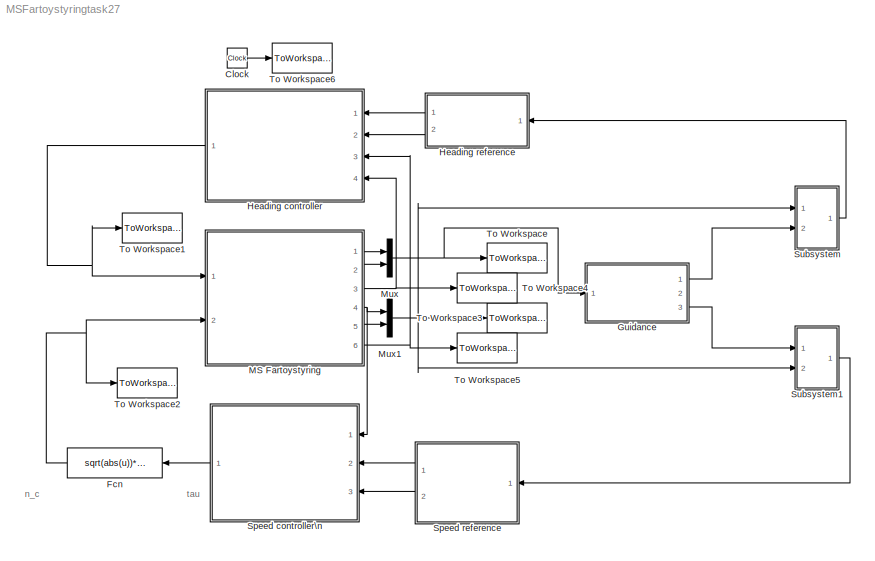
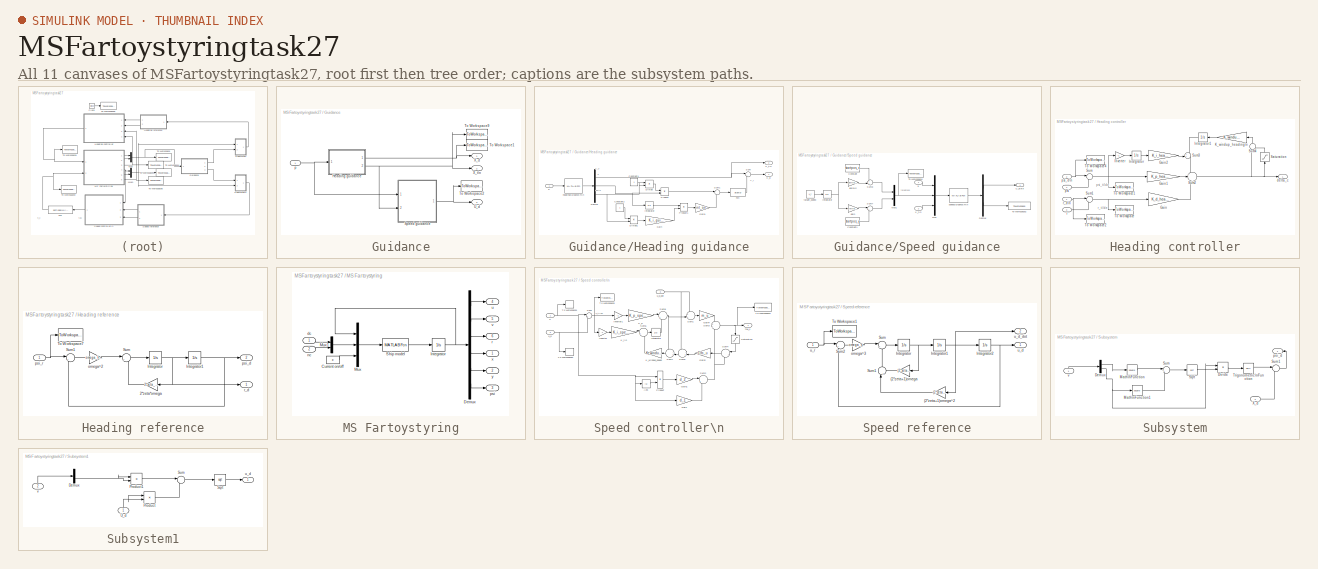
[diagram: thumbnail index - all 11 canvases of the model, root first then tree order]
MODEL MSFartoystyringtask27
KIND model
BLOCK [Clock] Clock
  SID = 30
BLOCK [Fcn] Fcn
  Expr = sqrt(abs(u))*sgn(u)
  SID = 95
BLOCK [SubSystem] Guidance
  Ports = [1, 3]
  RequestExecContextInheritance = off
  SID = 275
BLOCK [SubSystem] Guidance/Heading guidance
  Ports = [1, 2]
  RequestExecContextInheritance = off
  SID = 300
BLOCK [Constant] Guidance/Heading guidance/Constant1
  SID = 278
BLOCK [Constant] Guidance/Heading guidance/Constant2
  SID = 279
BLOCK [Demux] Guidance/Heading guidance/Demux
  DisplayOption = bar
  Outputs = 3
  Ports = [1, 3]
  SID = 280
BLOCK [Product] Guidance/Heading guidance/Divide
  InputSameDT = off
  Inputs = */
  OutDataTypeStr = Inherit: Inherit via internal rule
  Ports = [2, 1]
  RndMeth = Floor
  SID = 281
  SaturateOnIntegerOverflow = off
BLOCK [Product] Guidance/Heading guidance/Divide1
  InputSameDT = off
  Inputs = */
  OutDataTypeStr = Inherit: Inherit via internal rule
  Ports = [2, 1]
  RndMeth = Floor
  SID = 282
  SaturateOnIntegerOverflow = off
BLOCK [Fcn] Guidance/Heading guidance/Fcn
  Expr = atan(u)
  SID = 283
BLOCK [Gain] Guidance/Heading guidance/Gain
  Gain = K_i_guidance
  OutDataTypeStr = Inherit: Inherit via internal rule
  ParamDataTypeStr = Inherit: Inherit via internal rule
  SID = 284
  SaturateOnIntegerOverflow = off
BLOCK [Gain] Guidance/Heading guidance/Gain1
  Gain = int_on
  OutDataTypeStr = Inherit: Inherit via internal rule
  ParamDataTypeStr = Inherit: Inherit via internal rule
  SID = 285
  SaturateOnIntegerOverflow = off
BLOCK [Integrator] Guidance/Heading guidance/Integrator
  Ports = [1, 1]
  SID = 286
BLOCK [Product] Guidance/Heading guidance/Product
  InputSameDT = off
  OutDataTypeStr = Inherit: Inherit via internal rule
  Ports = [2, 1]
  RndMeth = Floor
  SID = 287
  SaturateOnIntegerOverflow = off
BLOCK [Product] Guidance/Heading guidance/Product1
  InputSameDT = off
  OutDataTypeStr = Inherit: Inherit via internal rule
  Ports = [2, 1]
  RndMeth = Floor
  SID = 288
  SaturateOnIntegerOverflow = off
BLOCK [Sum] Guidance/Heading guidance/Sum
  IconShape = round
  InputSameDT = off
  Inputs = |++
  OutDataTypeStr = Inherit: Inherit via internal rule
  Ports = [2, 1]
  SID = 289
  SaturateOnIntegerOverflow = off
BLOCK [Sum] Guidance/Heading guidance/Sum1
  IconShape = round
  InputSameDT = off
  Inputs = |--
  OutDataTypeStr = Inherit: Inherit via internal rule
  Ports = [2, 1]
  SID = 290
  SaturateOnIntegerOverflow = off
BLOCK [Outport] Guidance/Heading guidance/X_d
  IconDisplay = Port number
  SID = 302
BLOCK [Outport] Guidance/Heading guidance/X_t\n
  IconDisplay = Port number
  Port = 2
  SID = 303
BLOCK [MATLABFcn] Guidance/Heading guidance/headingGuidance.m\n
  MATLABFcn = headingGuidance(u)
  OutputDimensions = 3
  Ports = [1, 1]
  SID = 291
BLOCK [Inport] Guidance/Heading guidance/p
  IconDisplay = Port number
  SID = 301
BLOCK [SubSystem] Guidance/Speed guidance
  Ports = [2, 1]
  RequestExecContextInheritance = off
  SID = 306
BLOCK [Constant] Guidance/Speed guidance/Constant
  SID = 346
  Value = startpos_x
BLOCK [Constant] Guidance/Speed guidance/Constant1
  SID = 347
  Value = startpos_y
BLOCK [Demux] Guidance/Speed guidance/Demux
  DisplayOption = bar
  Outputs = 2
  Ports = [1, 2]
  SID = 335
BLOCK [Integrator] Guidance/Speed guidance/Integrator
  Ports = [1, 1]
  SID = 340
BLOCK [Mux] Guidance/Speed guidance/Mux
  DisplayOption = bar
  Inputs = 3
  Ports = [3, 1]
  SID = 334
BLOCK [Mux] Guidance/Speed guidance/Mux1
  DisplayOption = bar
  Inputs = 2
  Ports = [2, 1]
  SID = 348
BLOCK [Sum] Guidance/Speed guidance/Sum7
  IconShape = round
  InputSameDT = off
  Inputs = |++
  OutDataTypeStr = Inherit: Inherit via internal rule
  Ports = [2, 1]
  SID = 344
  SaturateOnIntegerOverflow = off
BLOCK [Sum] Guidance/Speed guidance/Sum8
  IconShape = round
  InputSameDT = off
  Inputs = ++|
  OutDataTypeStr = Inherit: Inherit via internal rule
  Ports = [2, 1]
  SID = 343
  SaturateOnIntegerOverflow = off
BLOCK [ToWorkspace] Guidance/Speed guidance/To Workspace2
  MaxDataPoints = inf
  Ports = [1]
  SID = 337
  SampleTime = tsamp
  VariableName = distance_error
BLOCK [ToWorkspace] Guidance/Speed guidance/To Workspace4
  MaxDataPoints = inf
  Ports = [1]
  SID = 350
  SampleTime = tsamp
  VariableName = targetpos
BLOCK [Outport] Guidance/Speed guidance/U_d\n\n
  IconDisplay = Port number
  SID = 323
BLOCK [Inport] Guidance/Speed guidance/X_t\n
  IconDisplay = Port number
  Port = 2
  SID = 328
BLOCK [Gain] Guidance/Speed guidance/gain
  Gain = sin(tracking_angle)
  OutDataTypeStr = Inherit: Inherit via internal rule
  ParamDataTypeStr = Inherit: Inherit via internal rule
  SID = 342
  SaturateOnIntegerOverflow = off
BLOCK [Gain] Guidance/Speed guidance/gain1\n
  Gain = cos(tracking_angle)
  OutDataTypeStr = Inherit: Inherit via internal rule
  ParamDataTypeStr = Inherit: Inherit via internal rule
  SID = 341
  SaturateOnIntegerOverflow = off
BLOCK [Inport] Guidance/Speed guidance/p
  IconDisplay = Port number
  SID = 307
BLOCK [MATLABFcn] Guidance/Speed guidance/speedGuidance.m\n
  MATLABFcn = speedGuidance(u(1:2),u(3:4),u(5))
  OutputDimensions = 2
  Ports = [1, 1]
  SID = 332
BLOCK [Constant] Guidance/Speed guidance/target_speed
  SID = 339
  Value = U_t
BLOCK [ToWorkspace] Guidance/To Workspace1
  MaxDataPoints = inf
  Ports = [1]
  SID = 305
  SampleTime = tsamp
  VariableName = X_d
BLOCK [ToWorkspace] Guidance/To Workspace2
  MaxDataPoints = inf
  Ports = [1]
  SID = 331
  SampleTime = tsamp
  VariableName = U_d
BLOCK [ToWorkspace] Guidance/To Workspace9
  MaxDataPoints = inf
  Ports = [1]
  SID = 304
  SampleTime = tsamp
  VariableName = X_t
BLOCK [Outport] Guidance/U_d
  IconDisplay = Port number
  Port = 3
  SID = 293
BLOCK [Outport] Guidance/X_d
  IconDisplay = Port number
  SID = 292
BLOCK [Outport] Guidance/X_t\n
  IconDisplay = Port number
  Port = 2
  SID = 299
BLOCK [Inport] Guidance/p
  IconDisplay = Port number
  SID = 276
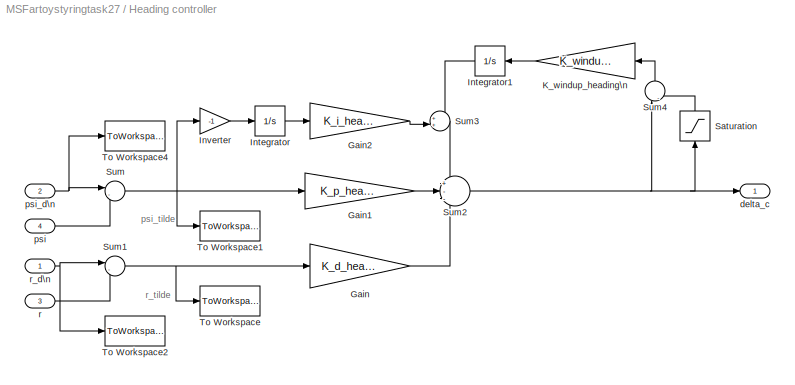
BLOCK [SubSystem] Heading controller
  Ports = [4, 1]
  RequestExecContextInheritance = off
  SID = 31
BLOCK [Gain] Heading controller/Gain
  Gain = K_d_heading
  OutDataTypeStr = Inherit: Inherit via internal rule
  ParamDataTypeStr = Inherit: Inherit via internal rule
  SID = 36
  SaturateOnIntegerOverflow = off
BLOCK [Gain] Heading controller/Gain1
  Gain = K_p_heading
  OutDataTypeStr = Inherit: Inherit via internal rule
  ParamDataTypeStr = Inherit: Inherit via internal rule
  SID = 37
  SaturateOnIntegerOverflow = off
BLOCK [Gain] Heading controller/Gain2
  Gain = K_i_heading
  OutDataTypeStr = Inherit: Inherit via internal rule
  ParamDataTypeStr = Inherit: Inherit via internal rule
  SID = 38
  SaturateOnIntegerOverflow = off
BLOCK [Integrator] Heading controller/Integrator
  Ports = [1, 1]
  SID = 39
BLOCK [Integrator] Heading controller/Integrator1
  Ports = [1, 1]
  SID = 185
BLOCK [Gain] Heading controller/Inverter
  Gain = -1
  OutDataTypeStr = Inherit: Inherit via internal rule
  ParamDataTypeStr = Inherit: Inherit via internal rule
  SID = 189
  SaturateOnIntegerOverflow = off
BLOCK [Gain] Heading controller/K_windup_heading\n
  Gain = K_windup_heading
  OutDataTypeStr = Inherit: Inherit via internal rule
  ParamDataTypeStr = Inherit: Inherit via internal rule
  SID = 184
  SaturateOnIntegerOverflow = off
BLOCK [Saturate] Heading controller/Saturation
  InputPortMap = u0
  LowerLimit = -delta_c_max
  Ports = [1, 1]
  SID = 187
  UpperLimit = delta_c_max
BLOCK [Sum] Heading controller/Sum
  IconShape = round
  InputSameDT = off
  Inputs = |-+
  OutDataTypeStr = Inherit: Inherit via internal rule
  Ports = [2, 1]
  SID = 40
  SaturateOnIntegerOverflow = off
BLOCK [Sum] Heading controller/Sum1
  IconShape = round
  InputSameDT = off
  Inputs = |-+
  OutDataTypeStr = Inherit: Inherit via internal rule
  Ports = [2, 1]
  SID = 41
  SaturateOnIntegerOverflow = off
BLOCK [Sum] Heading controller/Sum2
  IconShape = round
  InputSameDT = off
  Inputs = +--
  OutDataTypeStr = Inherit: Inherit via internal rule
  Ports = [3, 1]
  SID = 42
  SaturateOnIntegerOverflow = off
BLOCK [Sum] Heading controller/Sum3
  IconShape = round
  InputSameDT = off
  Inputs = ++|
  OutDataTypeStr = Inherit: Inherit via internal rule
  Ports = [2, 1]
  SID = 186
  SaturateOnIntegerOverflow = off
BLOCK [Sum] Heading controller/Sum4
  IconShape = round
  InputSameDT = off
  Inputs = |-+
  OutDataTypeStr = Inherit: Inherit via internal rule
  Ports = [2, 1]
  SID = 188
  SaturateOnIntegerOverflow = off
BLOCK [ToWorkspace] Heading controller/To Workspace
  FixptAsFi = on
  MaxDataPoints = inf
  Ports = [1]
  SID = 43
  SampleTime = tsamp
  VariableName = r_tilde
BLOCK [ToWorkspace] Heading controller/To Workspace1
  FixptAsFi = on
  MaxDataPoints = inf
  Ports = [1]
  SID = 44
  SampleTime = tsamp
  VariableName = psi_tilde
BLOCK [ToWorkspace] Heading controller/To Workspace2
  FixptAsFi = on
  MaxDataPoints = inf
  Ports = [1]
  SID = 45
  SampleTime = tsamp
  VariableName = r_d
BLOCK [ToWorkspace] Heading controller/To Workspace4
  FixptAsFi = on
  MaxDataPoints = inf
  Ports = [1]
  SID = 46
  SampleTime = tsamp
  VariableName = psi_d
BLOCK [Outport] Heading controller/delta_c
  IconDisplay = Port number
  SID = 47
BLOCK [Inport] Heading controller/psi
  IconDisplay = Port number
  Port = 4
  SID = 35
BLOCK [Inport] Heading controller/psi_d\n
  IconDisplay = Port number
  Port = 2
  SID = 33
BLOCK [Inport] Heading controller/r
  IconDisplay = Port number
  Port = 3
  SID = 34
BLOCK [Inport] Heading controller/r_d\n
  IconDisplay = Port number
  SID = 32
BLOCK [SubSystem] Heading reference
  Ports = [1, 2]
  RequestExecContextInheritance = off
  SID = 145
BLOCK [Gain] Heading reference/2*zeta*omega
  Gain = 2*zeta_heading*omega_heading
  OutDataTypeStr = Inherit: Inherit via internal rule
  ParamDataTypeStr = Inherit: Inherit via internal rule
  SID = 164
  SaturateOnIntegerOverflow = off
BLOCK [Integrator] Heading reference/Integrator
  InitialCondition = r0
  Ports = [1, 1]
  SID = 165
BLOCK [Integrator] Heading reference/Integrator1
  InitialCondition = psi0
  Ports = [1, 1]
  SID = 166
BLOCK [Sum] Heading reference/Sum
  IconShape = round
  InputSameDT = off
  Inputs = |+-
  OutDataTypeStr = Inherit: Inherit via internal rule
  Ports = [2, 1]
  SID = 167
  SaturateOnIntegerOverflow = off
BLOCK [Sum] Heading reference/Sum1
  IconShape = round
  InputSameDT = off
  Inputs = |+-
  OutDataTypeStr = Inherit: Inherit via internal rule
  Ports = [2, 1]
  SID = 168
  SaturateOnIntegerOverflow = off
BLOCK [ToWorkspace] Heading reference/To Workspace7
  MaxDataPoints = inf
  Ports = [1]
  SID = 169
  SampleTime = tsamp
  VariableName = psi_r
BLOCK [Gain] Heading reference/omega^2
  Gain = omega_heading^2
  OutDataTypeStr = Inherit: Inherit via internal rule
  ParamDataTypeStr = Inherit: Inherit via internal rule
  SID = 170
  SaturateOnIntegerOverflow = off
BLOCK [Outport] Heading reference/psi_d
  IconDisplay = Port number
  Port = 2
  SID = 158
BLOCK [Inport] Heading reference/psi_r
  IconDisplay = Port number
  SID = 146
BLOCK [Outport] Heading reference/r_d
  IconDisplay = Port number
  SID = 157
BLOCK [SubSystem] MS Fartoystyring
  Ports = [2, 6]
  RequestExecContextInheritance = off
  SID = 50
BLOCK [Constant] MS Fartoystyring/Current on//off
  SID = 53
  Value = c
BLOCK [Demux] MS Fartoystyring/Demux
  DisplayOption = bar
  Outputs = 6
  Ports = [1, 6]
  SID = 54
BLOCK [Integrator] MS Fartoystyring/Integrator
  InitialCondition = [u0 v0 r0 x0 y0 psi0]'
  Ports = [1, 1]
  SID = 55
BLOCK [Mux] MS Fartoystyring/Mux
  DisplayOption = bar
  Inputs = 3
  Ports = [3, 1]
  SID = 56
BLOCK [Mux] MS Fartoystyring/Mux1
  DisplayOption = bar
  Inputs = 2
  Ports = [2, 1]
  SID = 57
BLOCK [MATLABFcn] MS Fartoystyring/Ship model
  MATLABFcn = msfartoystyring(u(1:6), u(7:8), u(9))
  OutputDimensions = 6
  Ports = [1, 1]
  SID = 58
BLOCK [Inport] MS Fartoystyring/dc
  IconDisplay = Port number
  SID = 51
BLOCK [Inport] MS Fartoystyring/nc
  IconDisplay = Port number
  Port = 2
  SID = 52
BLOCK [Outport] MS Fartoystyring/psi
  IconDisplay = Port number
  Port = 3
  SID = 61
BLOCK [Outport] MS Fartoystyring/r
  IconDisplay = Port number
  Port = 6
  SID = 64
BLOCK [Outport] MS Fartoystyring/u
  IconDisplay = Port number
  Port = 4
  SID = 62
BLOCK [Outport] MS Fartoystyring/v
  IconDisplay = Port number
  Port = 5
  SID = 63
BLOCK [Outport] MS Fartoystyring/x
  IconDisplay = Port number
  SID = 59
BLOCK [Outport] MS Fartoystyring/y
  IconDisplay = Port number
  Port = 2
  SID = 60
BLOCK [Mux] Mux
  DisplayOption = bar
  Inputs = 2
  Ports = [2, 1]
  SID = 65
BLOCK [Mux] Mux1
  DisplayOption = bar
  Inputs = 2
  Ports = [2, 1]
  SID = 66
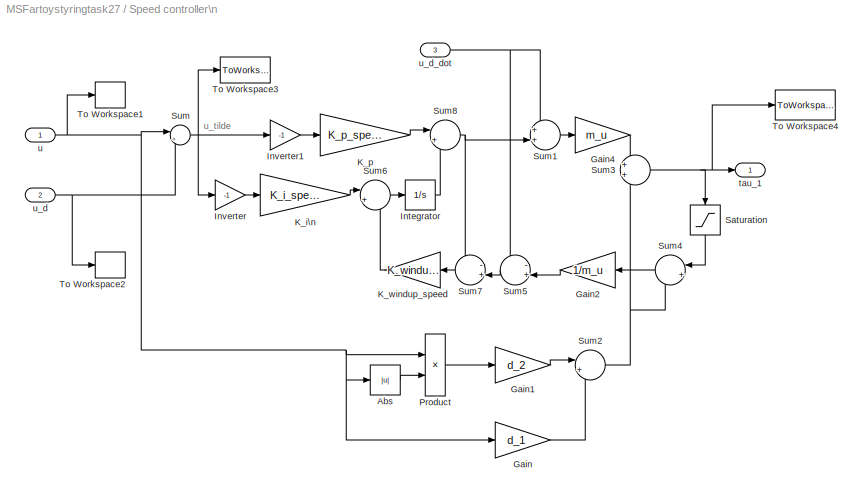
BLOCK [SubSystem] Speed controller\n
  Ports = [3, 1]
  RequestExecContextInheritance = off
  SID = 243
BLOCK [Abs] Speed controller\n/Abs
  SID = 247
  SaturateOnIntegerOverflow = off
BLOCK [Gain] Speed controller\n/Gain
  Gain = d_1
  OutDataTypeStr = Inherit: Inherit via internal rule
  ParamDataTypeStr = Inherit: Inherit via internal rule
  SID = 248
  SaturateOnIntegerOverflow = off
BLOCK [Gain] Speed controller\n/Gain1
  Gain = d_2
  OutDataTypeStr = Inherit: Inherit via internal rule
  ParamDataTypeStr = Inherit: Inherit via internal rule
  SID = 249
  SaturateOnIntegerOverflow = off
BLOCK [Gain] Speed controller\n/Gain2
  Gain = 1/m_u
  OutDataTypeStr = Inherit: Inherit via internal rule
  ParamDataTypeStr = Inherit: Inherit via internal rule
  SID = 250
  SaturateOnIntegerOverflow = off
BLOCK [Gain] Speed controller\n/Gain4
  Gain = m_u
  OutDataTypeStr = Inherit: Inherit via internal rule
  ParamDataTypeStr = Inherit: Inherit via internal rule
  SID = 251
  SaturateOnIntegerOverflow = off
BLOCK [Integrator] Speed controller\n/Integrator
  Ports = [1, 1]
  SID = 252
BLOCK [Gain] Speed controller\n/Inverter
  Gain = -1
  OutDataTypeStr = Inherit: Inherit via internal rule
  ParamDataTypeStr = Inherit: Inherit via internal rule
  SID = 253
  SaturateOnIntegerOverflow = off
BLOCK [Gain] Speed controller\n/Inverter1
  Gain = -1
  OutDataTypeStr = Inherit: Inherit via internal rule
  ParamDataTypeStr = Inherit: Inherit via internal rule
  SID = 254
  SaturateOnIntegerOverflow = off
BLOCK [Gain] Speed controller\n/K_i\n
  Gain = K_i_speed
  OutDataTypeStr = Inherit: Inherit via internal rule
  ParamDataTypeStr = Inherit: Inherit via internal rule
  SID = 255
  SaturateOnIntegerOverflow = off
BLOCK [Gain] Speed controller\n/K_p
  Gain = K_p_speed
  OutDataTypeStr = Inherit: Inherit via internal rule
  ParamDataTypeStr = Inherit: Inherit via internal rule
  SID = 256
  SaturateOnIntegerOverflow = off
BLOCK [Gain] Speed controller\n/K_windup_speed
  Gain = K_windup_speed
  OutDataTypeStr = Inherit: Inherit via internal rule
  ParamDataTypeStr = Inherit: Inherit via internal rule
  SID = 257
  SaturateOnIntegerOverflow = off
BLOCK [Product] Speed controller\n/Product
  InputSameDT = off
  OutDataTypeStr = Inherit: Inherit via internal rule
  Ports = [2, 1]
  RndMeth = Floor
  SID = 258
  SaturateOnIntegerOverflow = off
BLOCK [Saturate] Speed controller\n/Saturation
  InputPortMap = u0
  LowerLimit = -n_c_max^2
  Ports = [1, 1]
  SID = 259
  UpperLimit = n_c_max^2
BLOCK [Sum] Speed controller\n/Sum
  IconShape = round
  InputSameDT = off
  Inputs = |+-
  OutDataTypeStr = Inherit: Inherit via internal rule
  Ports = [2, 1]
  SID = 260
  SaturateOnIntegerOverflow = off
BLOCK [Sum] Speed controller\n/Sum1
  IconShape = round
  InputSameDT = off
  Inputs = ++|
  OutDataTypeStr = Inherit: Inherit via internal rule
  Ports = [2, 1]
  SID = 261
  SaturateOnIntegerOverflow = off
BLOCK [Sum] Speed controller\n/Sum2
  IconShape = round
  InputSameDT = off
  Inputs = |++
  OutDataTypeStr = Inherit: Inherit via internal rule
  Ports = [2, 1]
  SID = 262
  SaturateOnIntegerOverflow = off
BLOCK [Sum] Speed controller\n/Sum3
  IconShape = round
  InputSameDT = off
  OutDataTypeStr = Inherit: Inherit via internal rule
  Ports = [2, 1]
  SID = 263
  SaturateOnIntegerOverflow = off
BLOCK [Sum] Speed controller\n/Sum4
  IconShape = round
  InputSameDT = off
  Inputs = |+-
  OutDataTypeStr = Inherit: Inherit via internal rule
  Ports = [2, 1]
  SID = 264
  SaturateOnIntegerOverflow = off
BLOCK [Sum] Speed controller\n/Sum5
  IconShape = round
  InputSameDT = off
  Inputs = -+|
  OutDataTypeStr = Inherit: Inherit via internal rule
  Ports = [2, 1]
  SID = 265
  SaturateOnIntegerOverflow = off
BLOCK [Sum] Speed controller\n/Sum6
  IconShape = round
  InputSameDT = off
  Inputs = |++
  OutDataTypeStr = Inherit: Inherit via internal rule
  Ports = [2, 1]
  SID = 266
  SaturateOnIntegerOverflow = off
BLOCK [Sum] Speed controller\n/Sum7
  IconShape = round
  InputSameDT = off
  Inputs = -+|
  OutDataTypeStr = Inherit: Inherit via internal rule
  Ports = [2, 1]
  SID = 267
  SaturateOnIntegerOverflow = off
BLOCK [Sum] Speed controller\n/Sum8
  IconShape = round
  InputSameDT = off
  Inputs = |++
  OutDataTypeStr = Inherit: Inherit via internal rule
  Ports = [2, 1]
  SID = 268
  SaturateOnIntegerOverflow = off
BLOCK [ToWorkspace] Speed controller\n/To Workspace1
  MaxDataPoints = inf
  Ports = [1]
  SID = 269
  SampleTime = tsamp
  VariableName = u
BLOCK [ToWorkspace] Speed controller\n/To Workspace2
  MaxDataPoints = inf
  Ports = [1]
  SID = 270
  SampleTime = tsamp
  VariableName = u_d
BLOCK [ToWorkspace] Speed controller\n/To Workspace3
  MaxDataPoints = inf
  Ports = [1]
  SID = 271
  SampleTime = tsamp
  VariableName = u_tilde
BLOCK [ToWorkspace] Speed controller\n/To Workspace4
  FixptAsFi = on
  MaxDataPoints = inf
  Ports = [1]
  SID = 272
  SampleTime = tsamp
  Save2DSignal = 3-D array (concatenate along third dimension)
  VariableName = tau
BLOCK [Outport] Speed controller\n/tau_1
  IconDisplay = Port number
  SID = 273
BLOCK [Inport] Speed controller\n/u
  IconDisplay = Port number
  SID = 244
BLOCK [Inport] Speed controller\n/u_d
  IconDisplay = Port number
  Port = 2
  SID = 245
BLOCK [Inport] Speed controller\n/u_d_dot
  IconDisplay = Port number
  Port = 3
  SID = 246
BLOCK [SubSystem] Speed reference
  Ports = [1, 2]
  RequestExecContextInheritance = off
  SID = 99
BLOCK [Gain] Speed reference/(2*zeta+1)omega
  Gain = (2*zeta_speed+1)*omega_speed
  OutDataTypeStr = Inherit: Inherit via internal rule
  ParamDataTypeStr = Inherit: Inherit via internal rule
  SID = 133
  SaturateOnIntegerOverflow = off
BLOCK [Gain] Speed reference/(2*zeta+1)omega^2
  Gain = (2*zeta_speed+1)*omega_speed^2
  OutDataTypeStr = Inherit: Inherit via internal rule
  ParamDataTypeStr = Inherit: Inherit via internal rule
  SID = 134
  SaturateOnIntegerOverflow = off
BLOCK [Integrator] Speed reference/Integrator
  Ports = [1, 1]
  SID = 135
BLOCK [Integrator] Speed reference/Integrator1
  Ports = [1, 1]
  SID = 136
BLOCK [Integrator] Speed reference/Integrator2
  InitialCondition = u_r_0
  Ports = [1, 1]
  SID = 137
BLOCK [Sum] Speed reference/Sum
  IconShape = round
  InputSameDT = off
  Inputs = |+-
  OutDataTypeStr = Inherit: Inherit via internal rule
  Ports = [2, 1]
  SID = 138
  SaturateOnIntegerOverflow = off
BLOCK [Sum] Speed reference/Sum1
  IconShape = round
  InputSameDT = off
  Inputs = |++
  OutDataTypeStr = Inherit: Inherit via internal rule
  Ports = [2, 1]
  SID = 139
  SaturateOnIntegerOverflow = off
BLOCK [Sum] Speed reference/Sum2
  IconShape = round
  InputSameDT = off
  Inputs = |+-
  OutDataTypeStr = Inherit: Inherit via internal rule
  Ports = [2, 1]
  SID = 140
  SaturateOnIntegerOverflow = off
BLOCK [ToWorkspace] Speed reference/To Workspace1
  MaxDataPoints = inf
  Ports = [1]
  SID = 141
  SampleTime = tsamp
  VariableName = u_r
BLOCK [Gain] Speed reference/omega^3
  Gain = omega_speed^3
  OutDataTypeStr = Inherit: Inherit via internal rule
  ParamDataTypeStr = Inherit: Inherit via internal rule
  SID = 142
  SaturateOnIntegerOverflow = off
BLOCK [Outport] Speed reference/u_d
  IconDisplay = Port number
  SID = 143
BLOCK [Outport] Speed reference/u_d_dot
  IconDisplay = Port number
  Port = 2
  SID = 144
BLOCK [Inport] Speed reference/u_r
  IconDisplay = Port number
  SID = 132
BLOCK [SubSystem] Subsystem
  Ports = [2, 1]
  RequestExecContextInheritance = off
  SID = 210
BLOCK [Demux] Subsystem/Demux
  DisplayOption = bar
  Outputs = 2
  Ports = [1, 2]
  SID = 204
BLOCK [Product] Subsystem/Divide
  InputSameDT = off
  Inputs = */
  OutDataTypeStr = Inherit: Inherit via internal rule
  Ports = [2, 1]
  RndMeth = Floor
  SID = 207
  SaturateOnIntegerOverflow = off
BLOCK [Math] Subsystem/Math\nFunction
  Operator = square
  Ports = [1, 1]
  SID = 201
BLOCK [Math] Subsystem/Math\nFunction1
  Operator = square
  Ports = [1, 1]
  SID = 202
BLOCK [Sqrt] Subsystem/Sqrt
  SID = 206
BLOCK [Sum] Subsystem/Sum
  IconShape = round
  InputSameDT = off
  Inputs = |++
  OutDataTypeStr = Inherit: Inherit via internal rule
  Ports = [2, 1]
  SID = 203
  SaturateOnIntegerOverflow = off
BLOCK [Sum] Subsystem/Sum1
  IconShape = round
  InputSameDT = off
  Inputs = |-+
  OutDataTypeStr = Inherit: Inherit via internal rule
  Ports = [2, 1]
  SID = 209
  SaturateOnIntegerOverflow = off
BLOCK [Trigonometry] Subsystem/Trigonometric\nFunction
  Operator = asin
  Ports = [1, 1]
  SID = 208
BLOCK [Inport] Subsystem/X_d
  IconDisplay = Port number
  Port = 2
  SID = 212
BLOCK [Outport] Subsystem/psi_d
  IconDisplay = Port number
  SID = 213
BLOCK [Inport] Subsystem/v
  IconDisplay = Port number
  SID = 211
BLOCK [SubSystem] Subsystem1
  Ports = [2, 1]
  RequestExecContextInheritance = off
  SID = 216
BLOCK [Demux] Subsystem1/Demux
  DisplayOption = bar
  Outputs = 2
  Ports = [1, 2]
  SID = 231
BLOCK [Product] Subsystem1/Product
  InputSameDT = off
  OutDataTypeStr = Inherit: Inherit via internal rule
  Ports = [2, 1]
  RndMeth = Floor
  SID = 233
  SaturateOnIntegerOverflow = off
BLOCK [Product] Subsystem1/Product1
  InputSameDT = off
  OutDataTypeStr = Inherit: Inherit via internal rule
  Ports = [2, 1]
  RndMeth = Floor
  SID = 234
  SaturateOnIntegerOverflow = off
BLOCK [Sqrt] Subsystem1/Sqrt
  SID = 235
BLOCK [Sum] Subsystem1/Sum
  IconShape = round
  InputSameDT = off
  Inputs = |-+
  OutDataTypeStr = Inherit: Inherit via internal rule
  Ports = [2, 1]
  SID = 232
  SaturateOnIntegerOverflow = off
BLOCK [Inport] Subsystem1/U_d
  IconDisplay = Port number
  SID = 217
BLOCK [Outport] Subsystem1/u_d
  IconDisplay = Port number
  SID = 229
BLOCK [Inport] Subsystem1/v
  IconDisplay = Port number
  Port = 2
  SID = 230
BLOCK [ToWorkspace] To Workspace
  MaxDataPoints = inf
  Ports = [1]
  SID = 69
  SampleTime = tsamp
  VariableName = p
BLOCK [ToWorkspace] To Workspace1
  MaxDataPoints = inf
  Ports = [1]
  SID = 351
  SampleTime = tsamp
  VariableName = delta_c
BLOCK [ToWorkspace] To Workspace2
  MaxDataPoints = inf
  Ports = [1]
  SID = 352
  SampleTime = tsamp
  VariableName = n_c
BLOCK [ToWorkspace] To Workspace3
  MaxDataPoints = inf
  Ports = [1]
  SID = 70
  SampleTime = tsamp
  VariableName = v
BLOCK [ToWorkspace] To Workspace4
  MaxDataPoints = inf
  Ports = [1]
  SID = 71
  SampleTime = tsamp
  VariableName = psi
BLOCK [ToWorkspace] To Workspace5
  MaxDataPoints = inf
  Ports = [1]
  SID = 72
  SampleTime = tsamp
  VariableName = r
BLOCK [ToWorkspace] To Workspace6
  MaxDataPoints = inf
  Ports = [1]
  SID = 73
  SampleTime = tsamp
  VariableName = t
ANNOTATION (root): n_c
ANNOTATION (root): tau
ANNOTATION Guidance/Heading guidance: X_p\n
ANNOTATION Guidance/Heading guidance: X_r
ANNOTATION Guidance/Heading guidance: delta
ANNOTATION Guidance/Heading guidance: e
ANNOTATION Guidance/Speed guidance: targetpos
ANNOTATION Heading controller: psi_tilde\n
ANNOTATION Heading controller: r_tilde\n
ANNOTATION Speed controller\n: u_tilde
LINE Clock:1 -> To Workspace6:1
NET Fcn:1 -> MS Fartoystyring:2, To Workspace2:1
LINE Guidance/Heading guidance/Constant1:1 -> Guidance/Heading guidance/Divide:1
LINE Guidance/Heading guidance/Constant2:1 -> Guidance/Heading guidance/Divide1:1
NET Guidance/Heading guidance/Demux:1 -> Guidance/Heading guidance/Sum:1, Guidance/Heading guidance/X_t\n:1
NET Guidance/Heading guidance/Demux:2 -> Guidance/Heading guidance/Integrator:1, Guidance/Heading guidance/Product:2
NET Guidance/Heading guidance/Demux:3 -> Guidance/Heading guidance/Divide1:2, Guidance/Heading guidance/Divide:2
LINE Guidance/Heading guidance/Divide1:1 -> Guidance/Heading guidance/Gain:1
LINE Guidance/Heading guidance/Divide:1 -> Guidance/Heading guidance/Product:1
LINE Guidance/Heading guidance/Fcn:1 -> Guidance/Heading guidance/Sum:2
LINE Guidance/Heading guidance/Gain1:1 -> Guidance/Heading guidance/Sum1:2
LINE Guidance/Heading guidance/Gain:1 -> Guidance/Heading guidance/Product1:2
LINE Guidance/Heading guidance/Integrator:1 -> Guidance/Heading guidance/Product1:1
LINE Guidance/Heading guidance/Product1:1 -> Guidance/Heading guidance/Gain1:1
LINE Guidance/Heading guidance/Product:1 -> Guidance/Heading guidance/Sum1:1
LINE Guidance/Heading guidance/Sum1:1 -> Guidance/Heading guidance/Fcn:1
LINE Guidance/Heading guidance/Sum:1 -> Guidance/Heading guidance/X_d:1
LINE Guidance/Heading guidance/headingGuidance.m\n:1 -> Guidance/Heading guidance/Demux:1
LINE Guidance/Heading guidance/p:1 -> Guidance/Heading guidance/headingGuidance.m\n:1
NET Guidance/Heading guidance:1 -> Guidance/To Workspace1:1, Guidance/X_d:1
NET Guidance/Heading guidance:2 -> Guidance/Speed guidance:2, Guidance/To Workspace9:1, Guidance/X_t\n:1
LINE Guidance/Speed guidance/Constant1:1 -> Guidance/Speed guidance/Sum7:2
LINE Guidance/Speed guidance/Constant:1 -> Guidance/Speed guidance/Sum8:1
LINE Guidance/Speed guidance/Demux:1 -> Guidance/Speed guidance/U_d\n\n:1
LINE Guidance/Speed guidance/Demux:2 -> Guidance/Speed guidance/To Workspace2:1
NET Guidance/Speed guidance/Integrator:1 -> Guidance/Speed guidance/gain1\n:1, Guidance/Speed guidance/gain:1
NET Guidance/Speed guidance/Mux1:1 -> Guidance/Speed guidance/Mux:2, Guidance/Speed guidance/To Workspace4:1
LINE Guidance/Speed guidance/Mux:1 -> Guidance/Speed guidance/speedGuidance.m\n:1
LINE Guidance/Speed guidance/Sum7:1 -> Guidance/Speed guidance/Mux1:2
LINE Guidance/Speed guidance/Sum8:1 -> Guidance/Speed guidance/Mux1:1
LINE Guidance/Speed guidance/X_t\n:1 -> Guidance/Speed guidance/Mux:3
LINE Guidance/Speed guidance/gain1\n:1 -> Guidance/Speed guidance/Sum8:2
LINE Guidance/Speed guidance/gain:1 -> Guidance/Speed guidance/Sum7:1
LINE Guidance/Speed guidance/p:1 -> Guidance/Speed guidance/Mux:1
LINE Guidance/Speed guidance/speedGuidance.m\n:1 -> Guidance/Speed guidance/Demux:1
LINE Guidance/Speed guidance/target_speed:1 -> Guidance/Speed guidance/Integrator:1
NET Guidance/Speed guidance:1 -> Guidance/To Workspace2:1, Guidance/U_d:1
NET Guidance/p:1 -> Guidance/Heading guidance:1, Guidance/Speed guidance:1
LINE Guidance:1 -> Subsystem:2
LINE Guidance:3 -> Subsystem1:1
LINE Heading controller/Gain1:1 -> Heading controller/Sum2:2
LINE Heading controller/Gain2:1 -> Heading controller/Sum3:2
LINE Heading controller/Gain:1 -> Heading controller/Sum2:3
LINE Heading controller/Integrator1:1 -> Heading controller/Sum3:1
LINE Heading controller/Integrator:1 -> Heading controller/Gain2:1
LINE Heading controller/Inverter:1 -> Heading controller/Integrator:1
LINE Heading controller/K_windup_heading\n:1 -> Heading controller/Integrator1:1
LINE Heading controller/Saturation:1 -> Heading controller/Sum4:2
NET Heading controller/Sum1:1 -> Heading controller/Gain:1, Heading controller/To Workspace:1
NET Heading controller/Sum2:1 -> Heading controller/Saturation:1, Heading controller/Sum4:1, Heading controller/delta_c:1
LINE Heading controller/Sum3:1 -> Heading controller/Sum2:1
LINE Heading controller/Sum4:1 -> Heading controller/K_windup_heading\n:1
NET Heading controller/Sum:1 -> Heading controller/Gain1:1, Heading controller/Inverter:1, Heading controller/To Workspace1:1
LINE Heading controller/psi:1 -> Heading controller/Sum:2
NET Heading controller/psi_d\n:1 -> Heading controller/Sum:1, Heading controller/To Workspace4:1
LINE Heading controller/r:1 -> Heading controller/Sum1:2
NET Heading controller/r_d\n:1 -> Heading controller/Sum1:1, Heading controller/To Workspace2:1
NET Heading controller:1 -> MS Fartoystyring:1, To Workspace1:1
LINE Heading reference/2*zeta*omega:1 -> Heading reference/Sum:2
NET Heading reference/Integrator1:1 -> Heading reference/Sum1:2, Heading reference/psi_d:1
NET Heading reference/Integrator:1 -> Heading reference/2*zeta*omega:1, Heading reference/Integrator1:1, Heading reference/r_d:1
LINE Heading reference/Sum1:1 -> Heading reference/omega^2:1
LINE Heading reference/Sum:1 -> Heading reference/Integrator:1
LINE Heading reference/omega^2:1 -> Heading reference/Sum:1
NET Heading reference/psi_r:1 -> Heading reference/Sum1:1, Heading reference/To Workspace7:1
LINE Heading reference:1 -> Heading controller:1
LINE Heading reference:2 -> Heading controller:2
LINE MS Fartoystyring/Current on//off:1 -> MS Fartoystyring/Mux:3
LINE MS Fartoystyring/Demux:1 -> MS Fartoystyring/u:1
LINE MS Fartoystyring/Demux:2 -> MS Fartoystyring/v:1
LINE MS Fartoystyring/Demux:3 -> MS Fartoystyring/r:1
LINE MS Fartoystyring/Demux:4 -> MS Fartoystyring/x:1
LINE MS Fartoystyring/Demux:5 -> MS Fartoystyring/y:1
LINE MS Fartoystyring/Demux:6 -> MS Fartoystyring/psi:1
NET MS Fartoystyring/Integrator:1 -> MS Fartoystyring/Demux:1, MS Fartoystyring/Mux:1
LINE MS Fartoystyring/Mux1:1 -> MS Fartoystyring/Mux:2
LINE MS Fartoystyring/Mux:1 -> MS Fartoystyring/Ship model:1
LINE MS Fartoystyring/Ship model:1 -> MS Fartoystyring/Integrator:1
LINE MS Fartoystyring/dc:1 -> MS Fartoystyring/Mux1:1
LINE MS Fartoystyring/nc:1 -> MS Fartoystyring/Mux1:2
LINE MS Fartoystyring:1 -> Mux:1
LINE MS Fartoystyring:2 -> Mux:2
NET MS Fartoystyring:3 -> Heading controller:4, To Workspace4:1
NET MS Fartoystyring:4 -> Mux1:1, Speed controller\n:1
LINE MS Fartoystyring:5 -> Mux1:2
NET MS Fartoystyring:6 -> Heading controller:3, To Workspace5:1
NET Mux1:1 -> Subsystem1:2, Subsystem:1, To Workspace3:1
NET Mux:1 -> Guidance:1, To Workspace:1
LINE Speed controller\n/Abs:1 -> Speed controller\n/Product:2
LINE Speed controller\n/Gain1:1 -> Speed controller\n/Sum2:1
LINE Speed controller\n/Gain2:1 -> Speed controller\n/Sum5:2
LINE Speed controller\n/Gain4:1 -> Speed controller\n/Sum3:1
LINE Speed controller\n/Gain:1 -> Speed controller\n/Sum2:2
LINE Speed controller\n/Integrator:1 -> Speed controller\n/Sum8:2
LINE Speed controller\n/Inverter1:1 -> Speed controller\n/K_p:1
LINE Speed controller\n/Inverter:1 -> Speed controller\n/K_i\n:1
LINE Speed controller\n/K_i\n:1 -> Speed controller\n/Sum6:1
LINE Speed controller\n/K_p:1 -> Speed controller\n/Sum8:1
LINE Speed controller\n/K_windup_speed:1 -> Speed controller\n/Sum6:2
LINE Speed controller\n/Product:1 -> Speed controller\n/Gain1:1
LINE Speed controller\n/Saturation:1 -> Speed controller\n/Sum4:1
LINE Speed controller\n/Sum1:1 -> Speed controller\n/Gain4:1
NET Speed controller\n/Sum2:1 -> Speed controller\n/Sum3:2, Speed controller\n/Sum4:2
NET Speed controller\n/Sum3:1 -> Speed controller\n/Saturation:1, Speed controller\n/To Workspace4:1, Speed controller\n/tau_1:1
LINE Speed controller\n/Sum4:1 -> Speed controller\n/Gain2:1
LINE Speed controller\n/Sum5:1 -> Speed controller\n/Sum7:2
LINE Speed controller\n/Sum6:1 -> Speed controller\n/Integrator:1
LINE Speed controller\n/Sum7:1 -> Speed controller\n/K_windup_speed:1
NET Speed controller\n/Sum8:1 -> Speed controller\n/Sum1:2, Speed controller\n/Sum7:1
NET Speed controller\n/Sum:1 -> Speed controller\n/Inverter1:1, Speed controller\n/Inverter:1, Speed controller\n/To Workspace3:1
NET Speed controller\n/u:1 -> Speed controller\n/Abs:1, Speed controller\n/Gain:1, Speed controller\n/Product:1, Speed controller\n/Sum:1, Speed controller\n/To Workspace1:1
NET Speed controller\n/u_d:1 -> Speed controller\n/Sum:2, Speed controller\n/To Workspace2:1
NET Speed controller\n/u_d_dot:1 -> Speed controller\n/Sum1:1, Speed controller\n/Sum5:1
LINE Speed controller\n:1 -> Fcn:1
LINE Speed reference/(2*zeta+1)omega:1 -> Speed reference/Sum1:2
LINE Speed reference/(2*zeta+1)omega^2:1 -> Speed reference/Sum1:1
NET Speed reference/Integrator1:1 -> Speed reference/(2*zeta+1)omega^2:1, Speed reference/Integrator2:1, Speed reference/u_d_dot:1
NET Speed reference/Integrator2:1 -> Speed reference/Sum2:2, Speed reference/u_d:1
NET Speed reference/Integrator:1 -> Speed reference/(2*zeta+1)omega:1, Speed reference/Integrator1:1
LINE Speed reference/Sum1:1 -> Speed reference/Sum:2
LINE Speed reference/Sum2:1 -> Speed reference/omega^3:1
LINE Speed reference/Sum:1 -> Speed reference/Integrator:1
LINE Speed reference/omega^3:1 -> Speed reference/Sum:1
NET Speed reference/u_r:1 -> Speed reference/Sum2:1, Speed reference/To Workspace1:1
LINE Speed reference:1 -> Speed controller\n:2
LINE Speed reference:2 -> Speed controller\n:3
LINE Subsystem/Demux:1 -> Subsystem/Math\nFunction:1
NET Subsystem/Demux:2 -> Subsystem/Divide:1, Subsystem/Math\nFunction1:1
LINE Subsystem/Divide:1 -> Subsystem/Trigonometric\nFunction:1
LINE Subsystem/Math\nFunction1:1 -> Subsystem/Sum:2
LINE Subsystem/Math\nFunction:1 -> Subsystem/Sum:1
LINE Subsystem/Sqrt:1 -> Subsystem/Divide:2
LINE Subsystem/Sum1:1 -> Subsystem/psi_d:1
LINE Subsystem/Sum:1 -> Subsystem/Sqrt:1
LINE Subsystem/Trigonometric\nFunction:1 -> Subsystem/Sum1:1
LINE Subsystem/X_d:1 -> Subsystem/Sum1:2
LINE Subsystem/v:1 -> Subsystem/Demux:1
NET Subsystem1/Demux:2 -> Subsystem1/Product1:1, Subsystem1/Product1:2
LINE Subsystem1/Product1:1 -> Subsystem1/Sum:1
LINE Subsystem1/Product:1 -> Subsystem1/Sum:2
LINE Subsystem1/Sqrt:1 -> Subsystem1/u_d:1
LINE Subsystem1/Sum:1 -> Subsystem1/Sqrt:1
NET Subsystem1/U_d:1 -> Subsystem1/Product:1, Subsystem1/Product:2
LINE Subsystem1/v:1 -> Subsystem1/Demux:1
LINE Subsystem1:1 -> Speed reference:1
LINE Subsystem:1 -> Heading reference:1
note: NET lines group one-source signal fan-out (src -> all destinations, sorted); 1:1 wires keep LINE
